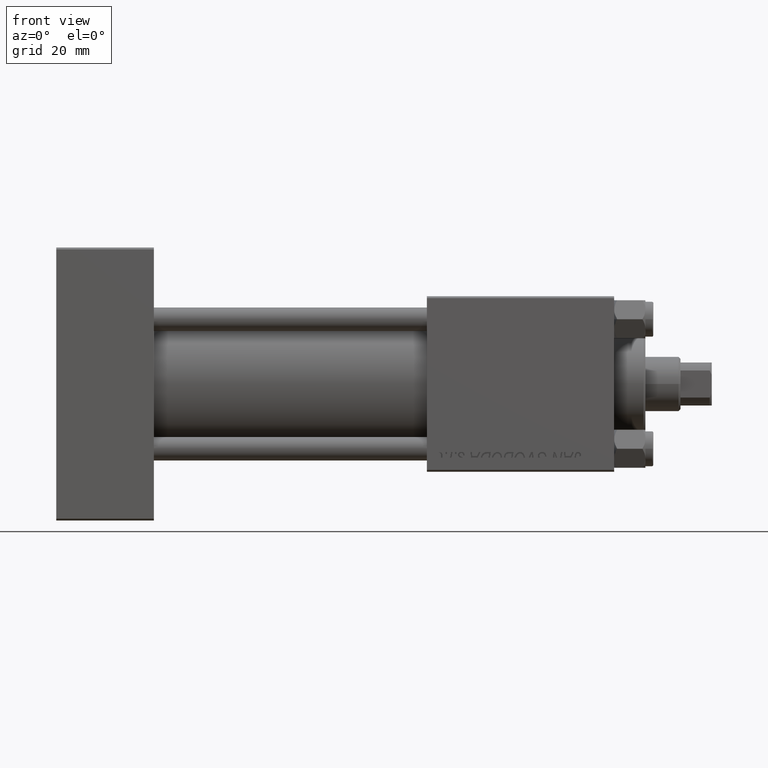
[diagram: clean part render]
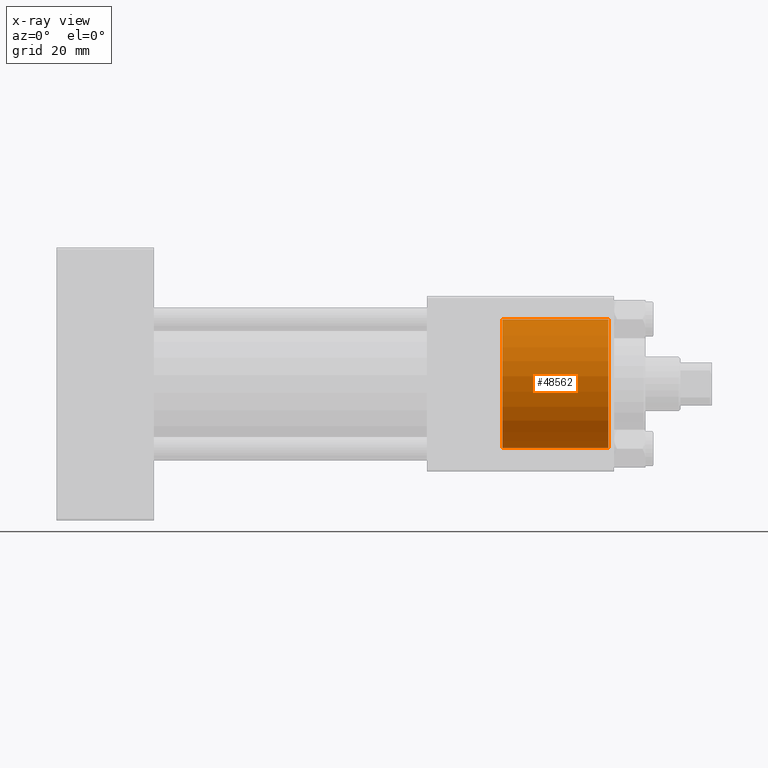
[diagram: x-ray — body ghosted, one internal face saturated and labeled with its STEP entity id]
A machine part, front view, then the same camera in x-ray: the body is ghosted and one INTERNAL B-rep face — a face not visible from any outside direction — is saturated and labeled: STEP entity #48562.
In plain terms, the highlighted cylindrical surface (partial cylindrical patch) has radius 16.5 mm, axis along (1, 0, 0).
Its self-contained STEP definition (entity closure, byte-faithful):
#993 = DIRECTION ( 'NONE',  ( 1.000000000000000000, -0.000000000000000000, -0.000000000000000000 ) ) ;
#1020 = CIRCLE ( 'NONE', #46150, 16.50000000000000000 ) ;
#4975 = DIRECTION ( 'NONE',  ( 1.000000000000000000, -0.000000000000000000, -0.000000000000000000 ) ) ;
#5571 = ORIENTED_EDGE ( 'NONE', *, *, #8805, .T. ) ;
#7667 = DIRECTION ( 'NONE',  ( 0.000000000000000000, 0.000000000000000000, -1.000000000000000000 ) ) ;
#8805 = EDGE_CURVE ( 'NONE', #39440, #47412, #37865, .T. ) ;
#9196 = EDGE_CURVE ( 'NONE', #9891, #39440, #16617, .T. ) ;
#9523 = CARTESIAN_POINT ( 'NONE',  ( 114.3000000000000114, 0.000000000000000000, -16.50000000000000000 ) ) ;
#9891 = VERTEX_POINT ( 'NONE', #25840 ) ;
#10208 = DIRECTION ( 'NONE',  ( 0.000000000000000000, 0.000000000000000000, 1.000000000000000000 ) ) ;
#10340 = DIRECTION ( 'NONE',  ( 1.000000000000000000, -0.000000000000000000, -0.000000000000000000 ) ) ;
#10699 = CARTESIAN_POINT ( 'NONE',  ( 141.5000000000000284, 0.000000000000000000, 0.000000000000000000 ) ) ;
#12938 = CARTESIAN_POINT ( 'NONE',  ( 141.5000000000000284, 0.000000000000000000, -16.50000000000000000 ) ) ;
#14135 = CYLINDRICAL_SURFACE ( 'NONE', #36117, 16.50000000000000000 ) ;
#16063 = AXIS2_PLACEMENT_3D ( 'NONE', #10699, #37755, #10208 ) ;
#16512 = EDGE_CURVE ( 'NONE', #9891, #48684, #1020, .T. ) ;
#16617 = LINE ( 'NONE', #35820, #19302 ) ;
#19302 = VECTOR ( 'NONE', #4975, 1000.000000000000000 ) ;
#20743 = ORIENTED_EDGE ( 'NONE', *, *, #9196, .T. ) ;
#23768 = CARTESIAN_POINT ( 'NONE',  ( 114.3000000000000114, 0.000000000000000000, -16.50000000000000000 ) ) ;
#25777 = DIRECTION ( 'NONE',  ( 0.000000000000000000, 0.000000000000000000, -1.000000000000000000 ) ) ;
#25840 = CARTESIAN_POINT ( 'NONE',  ( 114.3000000000000114, 2.020667218593133100E-15, 16.50000000000000000 ) ) ;
#25895 = CARTESIAN_POINT ( 'NONE',  ( 114.3000000000000114, 0.000000000000000000, 0.000000000000000000 ) ) ;
#29553 = EDGE_LOOP ( 'NONE', ( #38200, #20743, #5571, #40844 ) ) ;
#29572 = CARTESIAN_POINT ( 'NONE',  ( 114.3000000000000114, 0.000000000000000000, 0.000000000000000000 ) ) ;
#34460 = VECTOR ( 'NONE', #993, 1000.000000000000000 ) ;
#35820 = CARTESIAN_POINT ( 'NONE',  ( 114.3000000000000114, 2.020667218593133100E-15, 16.50000000000000000 ) ) ;
#36117 = AXIS2_PLACEMENT_3D ( 'NONE', #29572, #10340, #25777 ) ;
#37652 = FACE_OUTER_BOUND ( 'NONE', #29553, .T. ) ;
#37755 = DIRECTION ( 'NONE',  ( 1.000000000000000000, 0.000000000000000000, 0.000000000000000000 ) ) ;
#37865 = CIRCLE ( 'NONE', #16063, 16.50000000000000000 ) ;
#38200 = ORIENTED_EDGE ( 'NONE', *, *, #16512, .F. ) ;
#39440 = VERTEX_POINT ( 'NONE', #40951 ) ;
#40844 = ORIENTED_EDGE ( 'NONE', *, *, #46364, .F. ) ;
#40951 = CARTESIAN_POINT ( 'NONE',  ( 141.5000000000000284, 2.020667218593133100E-15, 16.50000000000000000 ) ) ;
#42944 = LINE ( 'NONE', #23768, #34460 ) ;
#46150 = AXIS2_PLACEMENT_3D ( 'NONE', #25895, #49596, #7667 ) ;
#46364 = EDGE_CURVE ( 'NONE', #48684, #47412, #42944, .T. ) ;
#47412 = VERTEX_POINT ( 'NONE', #12938 ) ;
#48562 = ADVANCED_FACE ( 'NONE', ( #37652 ), #14135, .F. ) ;
#48684 = VERTEX_POINT ( 'NONE', #9523 ) ;
#49596 = DIRECTION ( 'NONE',  ( 1.000000000000000000, 0.000000000000000000, 0.000000000000000000 ) ) ;